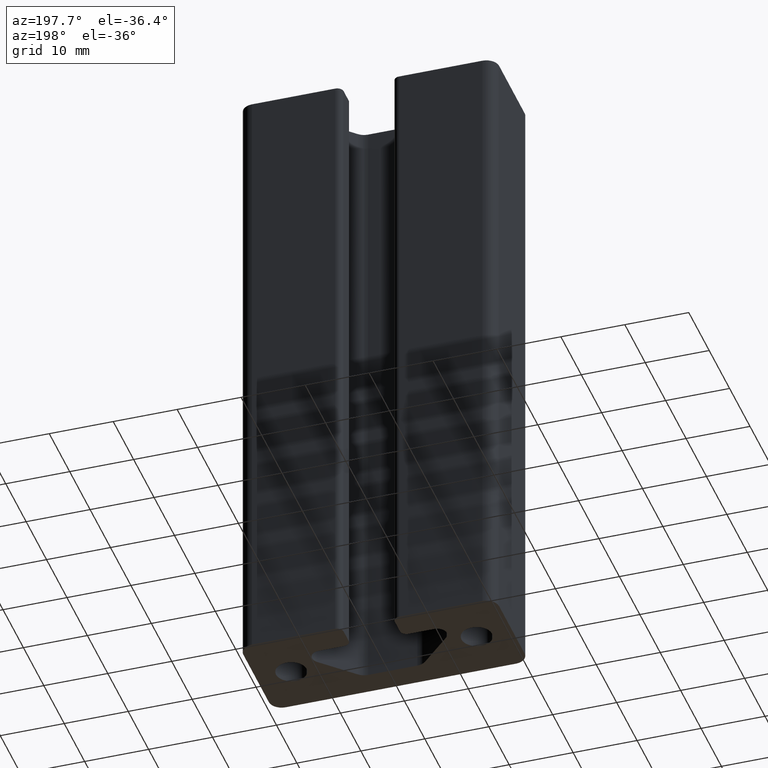
[diagram: clean part render]
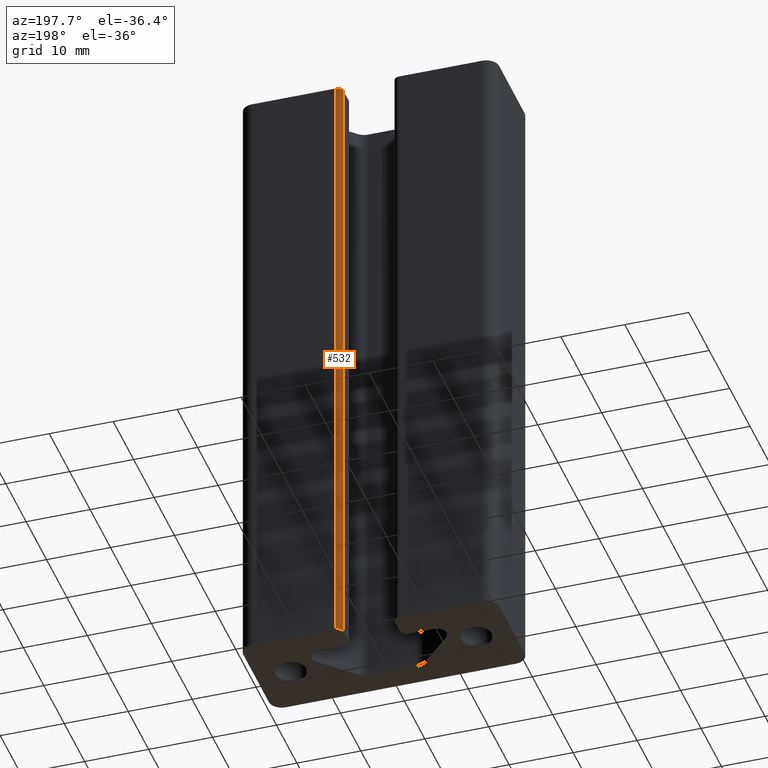
[diagram: same view with one face highlighted and labeled with its STEP entity id]
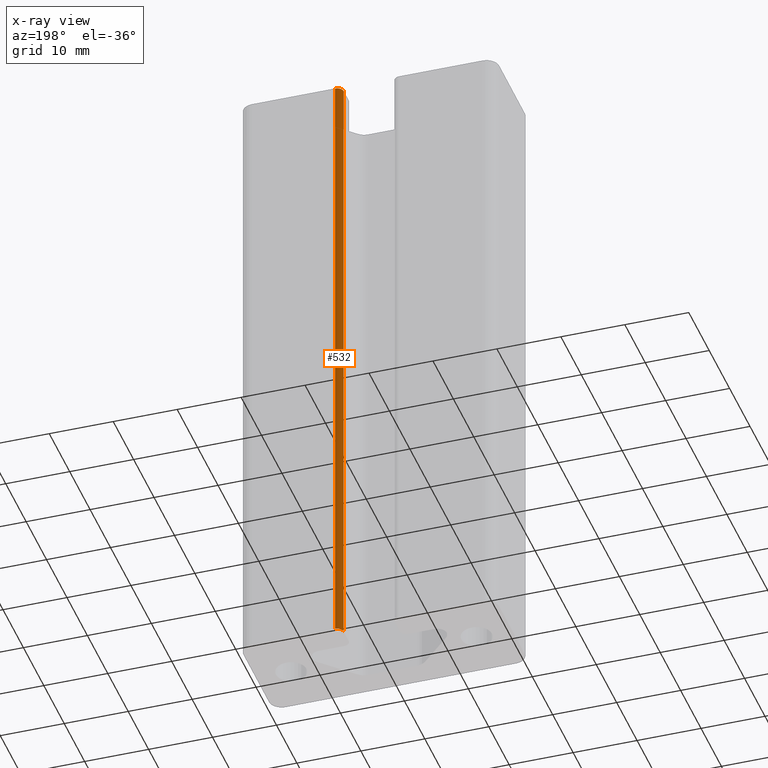
[diagram: x-ray of the same camera — body ghosted, the highlighted face saturated]
A machine part, auxiliary view. The second image highlights one B-rep face of the part: STEP entity #532.
The next image is the same camera in x-ray: the body ghosted, the highlighted face saturated — about 0% of this face is hidden behind the body in this view.
In plain terms, the highlighted cylindrical surface (edge-blend (fillet) strip) has radius 1 mm, axis along (0, 0, 1).
Its self-contained STEP definition (entity closure, byte-faithful):
#39=CIRCLE('',#581,1.0000000020255);
#40=CIRCLE('',#582,1.0000000020255);
#58=CYLINDRICAL_SURFACE('',#580,1.0000000020255);
#80=FACE_OUTER_BOUND('',#110,.T.);
#110=EDGE_LOOP('',(#413,#414,#415,#416));
#155=LINE('',#865,#203);
#157=LINE('',#871,#205);
#203=VECTOR('',#703,100.);
#205=VECTOR('',#709,100.);
#255=VERTEX_POINT('',#862);
#256=VERTEX_POINT('',#864);
#257=VERTEX_POINT('',#868);
#258=VERTEX_POINT('',#870);
#321=EDGE_CURVE('',#256,#255,#155,.T.);
#323=EDGE_CURVE('',#255,#257,#39,.T.);
#324=EDGE_CURVE('',#258,#257,#157,.T.);
#325=EDGE_CURVE('',#256,#258,#40,.T.);
#413=ORIENTED_EDGE('',*,*,#323,.T.);
#414=ORIENTED_EDGE('',*,*,#324,.F.);
#415=ORIENTED_EDGE('',*,*,#325,.F.);
#416=ORIENTED_EDGE('',*,*,#321,.T.);
#532=ADVANCED_FACE('',(#80),#58,.T.);
#580=AXIS2_PLACEMENT_3D('',#867,#705,#706);
#581=AXIS2_PLACEMENT_3D('',#869,#707,#708);
#582=AXIS2_PLACEMENT_3D('',#872,#710,#711);
#703=DIRECTION('',(0.,0.,1.));
#705=DIRECTION('center_axis',(0.,0.,1.));
#706=DIRECTION('ref_axis',(-2.02549310246954E-9,-1.,0.));
#707=DIRECTION('center_axis',(0.,0.,-1.));
#708=DIRECTION('ref_axis',(-2.02549310246954E-9,-1.,0.));
#709=DIRECTION('',(0.,0.,1.));
#710=DIRECTION('center_axis',(0.,0.,-1.));
#711=DIRECTION('ref_axis',(-2.02549310246954E-9,-1.,0.));
#862=CARTESIAN_POINT('',(4.,7.24999999999995,100.));
#864=CARTESIAN_POINT('',(4.,7.24999999999995,0.));
#865=CARTESIAN_POINT('',(4.,7.24999999999995,0.));
#867=CARTESIAN_POINT('Origin',(5.0000000020255,7.24999999797444,0.));
#868=CARTESIAN_POINT('',(5.000000004051,8.24999999999994,100.));
#869=CARTESIAN_POINT('Origin',(5.0000000020255,7.24999999797444,100.));
#870=CARTESIAN_POINT('',(5.000000004051,8.24999999999994,0.));
#871=CARTESIAN_POINT('',(5.000000004051,8.24999999999994,0.));
#872=CARTESIAN_POINT('Origin',(5.0000000020255,7.24999999797444,0.));